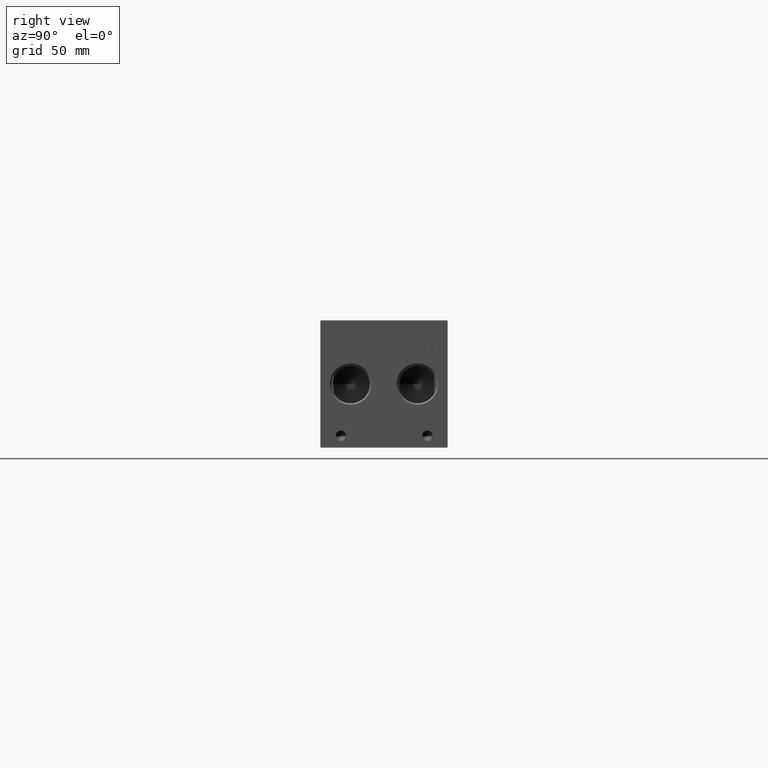
[diagram: clean part render]
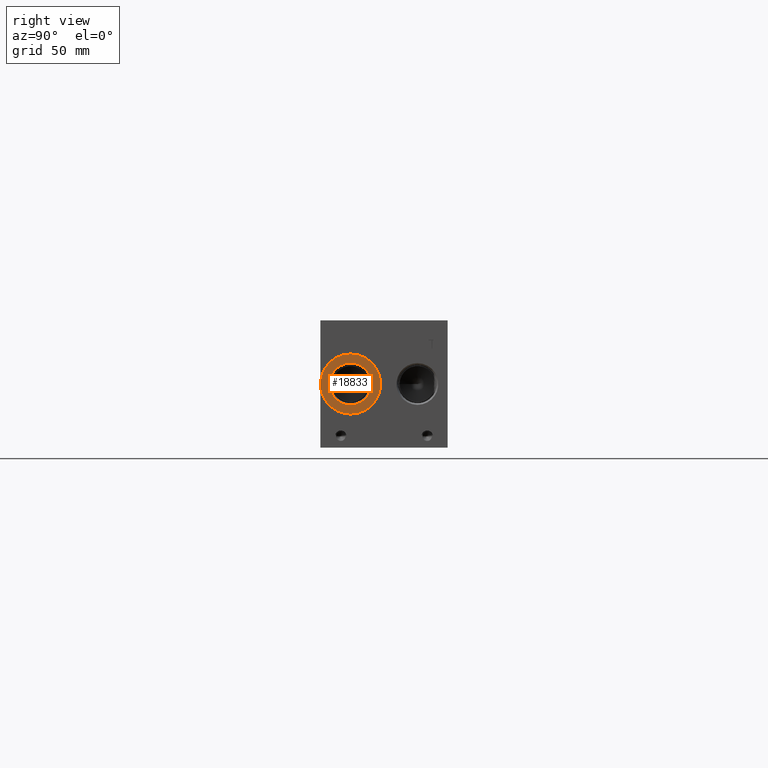
[diagram: same view with one face highlighted and labeled with its STEP entity id]
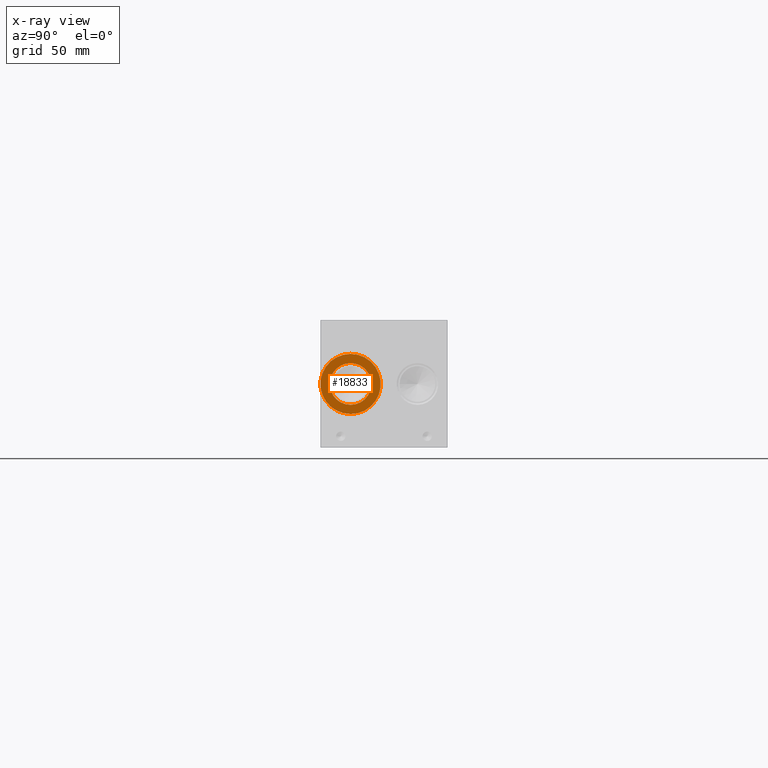
[diagram: x-ray of the same camera — body ghosted, the highlighted face saturated]
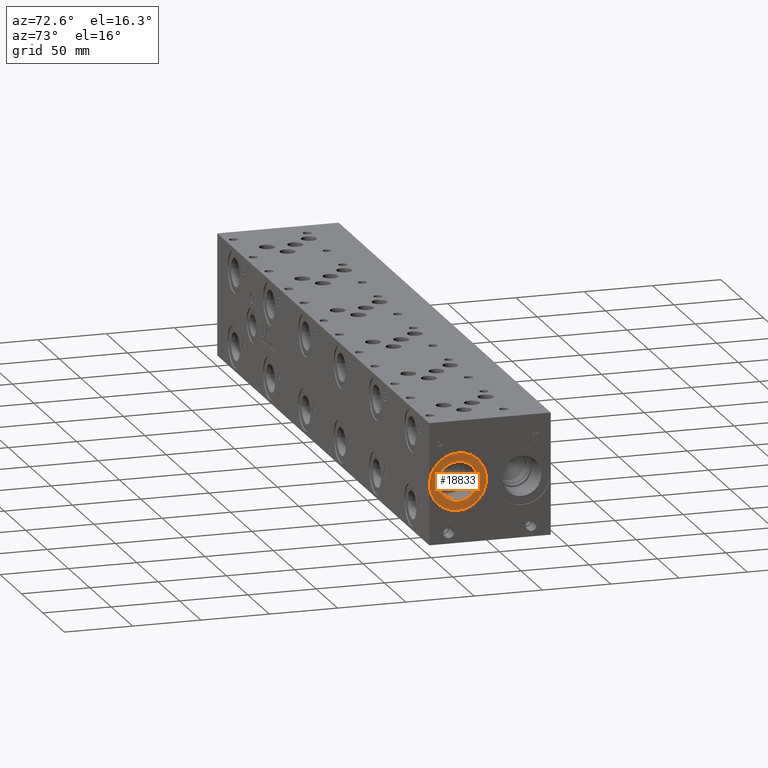
[diagram: same view with one face highlighted and labeled with its STEP entity id]
A machine part, right view. The second image highlights one B-rep face of the part: STEP entity #18833.
The next image is the same camera in x-ray: the body ghosted, the highlighted face saturated — about 0% of this face is hidden behind the body in this view.
A second angle (auxiliary view) of the same face is appended — the face is thin or edge-on in the first view.
In plain terms, the highlighted planar face has unit normal (-1, 0, 0).
Its self-contained STEP definition (entity closure, byte-faithful):
#717=CIRCLE('',#19806,21.0185);
#718=CIRCLE('',#19807,21.0185);
#719=CIRCLE('',#19809,14.5923);
#720=CIRCLE('',#19810,14.5923);
#1709=FACE_BOUND('',#3641,.T.);
#2537=FACE_OUTER_BOUND('',#3640,.T.);
#3640=EDGE_LOOP('',(#15655,#15656));
#3641=EDGE_LOOP('',(#15657,#15658));
#8525=VERTEX_POINT('',#31954);
#8526=VERTEX_POINT('',#31956);
#8527=VERTEX_POINT('',#31960);
#8528=VERTEX_POINT('',#31961);
#11031=EDGE_CURVE('',#8525,#8526,#717,.T.);
#11032=EDGE_CURVE('',#8526,#8525,#718,.T.);
#11033=EDGE_CURVE('',#8527,#8528,#719,.T.);
#11034=EDGE_CURVE('',#8528,#8527,#720,.T.);
#15655=ORIENTED_EDGE('',*,*,#11032,.F.);
#15656=ORIENTED_EDGE('',*,*,#11031,.F.);
#15657=ORIENTED_EDGE('',*,*,#11033,.T.);
#15658=ORIENTED_EDGE('',*,*,#11034,.T.);
#17429=PLANE('',#19808);
#18833=ADVANCED_FACE('',(#2537,#1709),#17429,.F.);
#19806=AXIS2_PLACEMENT_3D('',#31957,#23260,#23261);
#19807=AXIS2_PLACEMENT_3D('',#31958,#23262,#23263);
#19808=AXIS2_PLACEMENT_3D('',#31959,#23264,#23265);
#19809=AXIS2_PLACEMENT_3D('',#31962,#23266,#23267);
#19810=AXIS2_PLACEMENT_3D('',#31963,#23268,#23269);
#23260=DIRECTION('center_axis',(-1.,0.,0.));
#23261=DIRECTION('ref_axis',(0.,0.,1.));
#23262=DIRECTION('center_axis',(-1.,0.,0.));
#23263=DIRECTION('ref_axis',(0.,0.,1.));
#23264=DIRECTION('center_axis',(-1.,0.,0.));
#23265=DIRECTION('ref_axis',(0.,0.,1.));
#23266=DIRECTION('center_axis',(-1.,0.,0.));
#23267=DIRECTION('ref_axis',(0.,0.,1.));
#23268=DIRECTION('center_axis',(-1.,0.,0.));
#23269=DIRECTION('ref_axis',(0.,0.,1.));
#31954=CARTESIAN_POINT('',(494.5126,21.082,65.4685));
#31956=CARTESIAN_POINT('',(494.5126,21.082,23.4315));
#31957=CARTESIAN_POINT('Origin',(494.5126,21.082,44.45));
#31958=CARTESIAN_POINT('Origin',(494.5126,21.082,44.45));
#31959=CARTESIAN_POINT('Origin',(494.5126,21.082,29.8577));
#31960=CARTESIAN_POINT('',(494.5126,21.082,29.8577));
#31961=CARTESIAN_POINT('',(494.5126,21.082,59.0423));
#31962=CARTESIAN_POINT('Origin',(494.5126,21.082,44.45));
#31963=CARTESIAN_POINT('Origin',(494.5126,21.082,44.45));